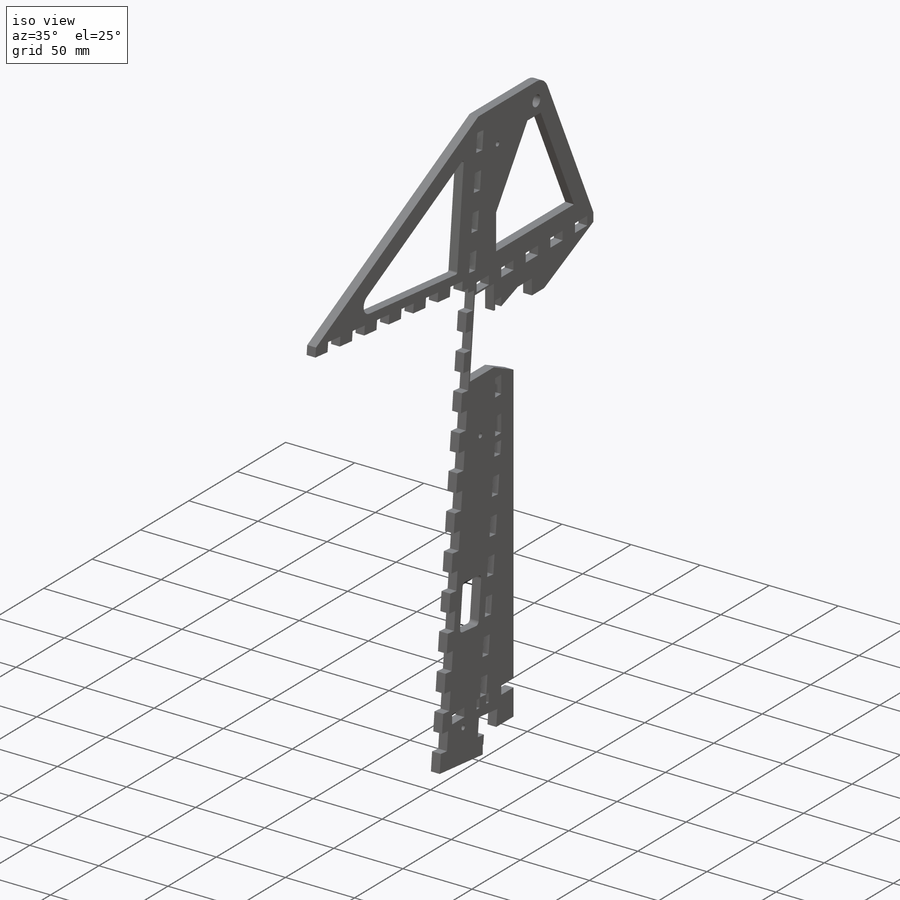
[diagram: iso view]
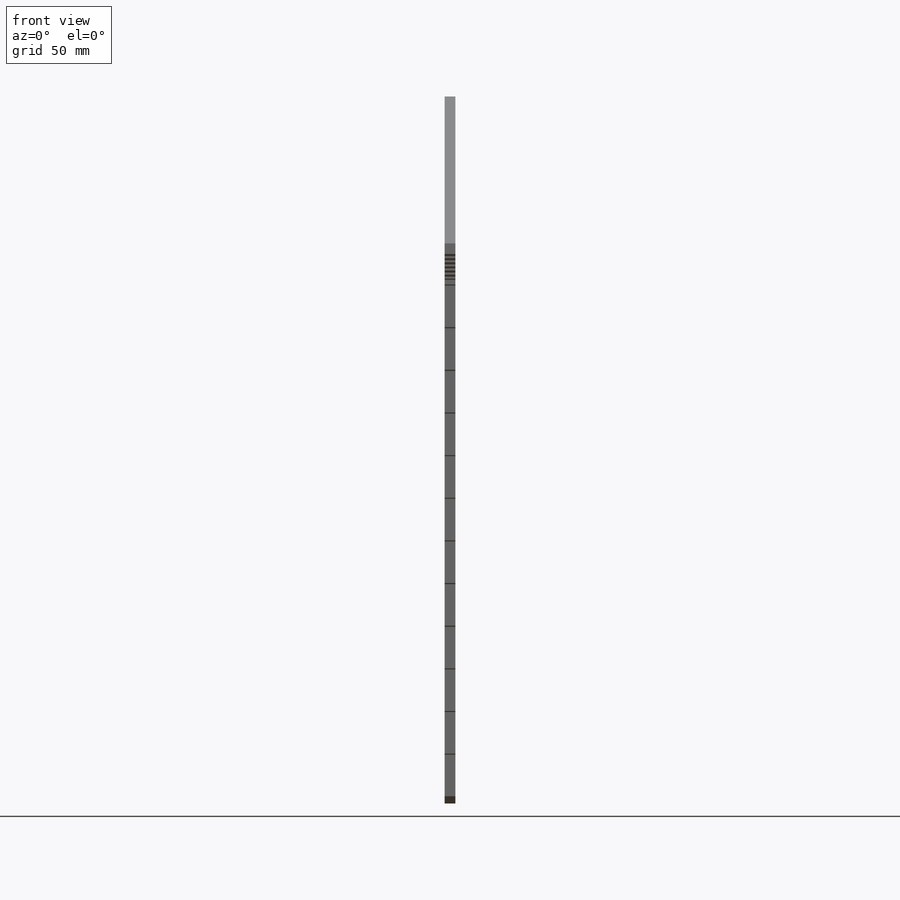
[diagram: front view]
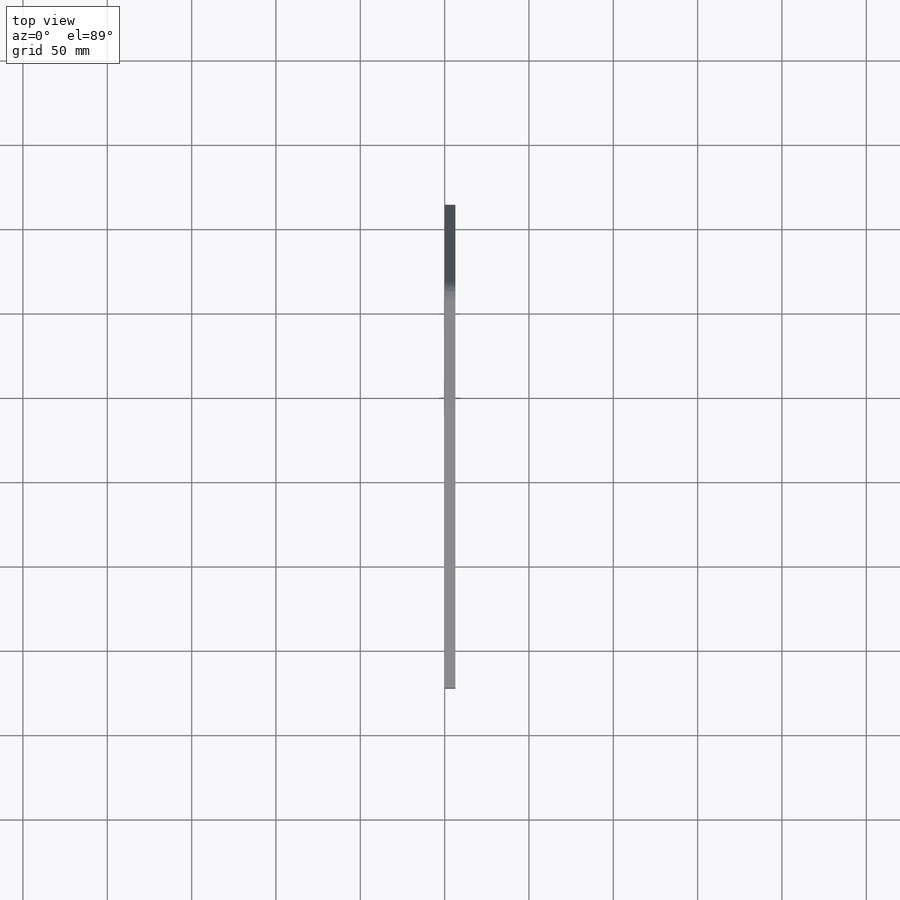
[diagram: top view]
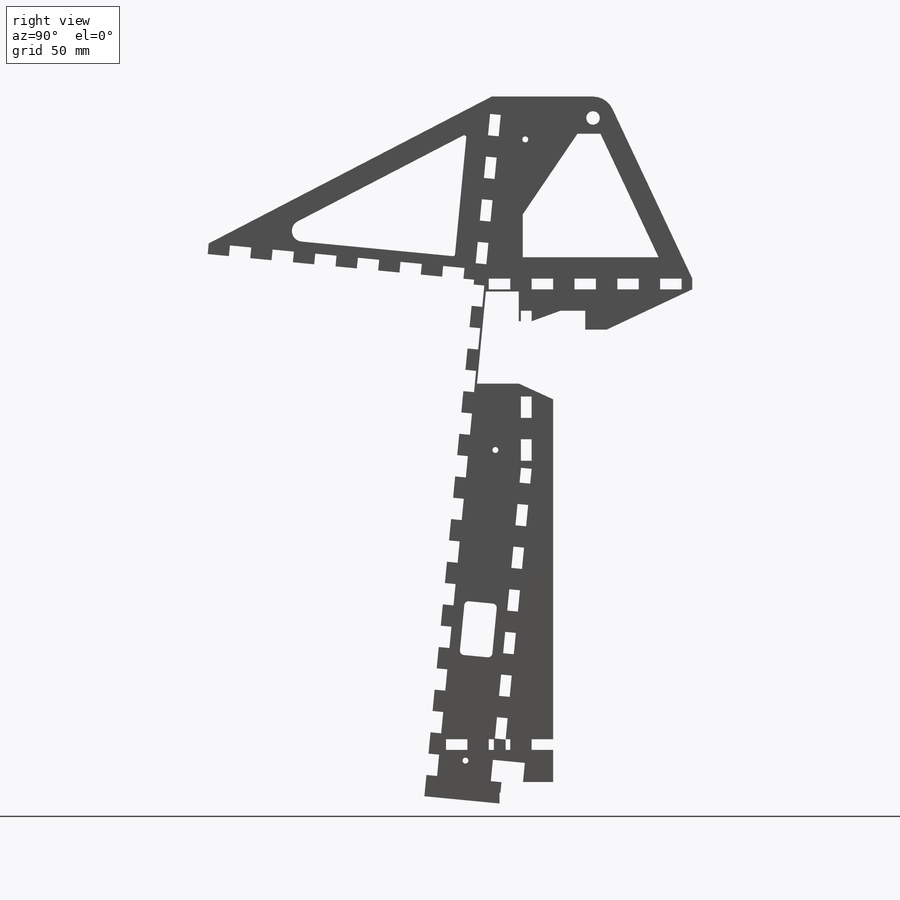
[diagram: right view]
SOLIDWORKS PART (.sldprt)
format: sldprt  version: not decoded by parser v0  size: 1,182,720 bytes
history: native  units: mm
features: sketch x23, cut_extrude x20, pattern_linear x7, fillet x4, extrude x3, material x1 (+13 scaffold rows collapsed)
feature tree (71):
  scaffold x13  (default folders/planes/origin — collapsed)
  material  "Material <not specified>"
  sketch  "Sketch1"  dims[c1.D9=76.2mm c1.D14=76.2mm c1.D1=419.1mm c1.D2=101.6mm c1.D3=19.05mm c1.D4=19.05mm c1.D5=~447.578732mm c2.D5=84.5deg c2.D6=40.0mm c2.D7=400.0mm c2.D8=95.25mm c2.D9=10.0mm c2.D10=20.0mm c2.D11=114.3mm c2.D12=200.025mm c2.D13=95.25mm c2.D14=6.35mm c2.D15=127.0mm c2.D16=95.25mm c2.D17=203.2mm c3.D12=95.25mm c3.D10=9.525mm c3.D13=9.525mm c3.D14=76.2mm c3.D9=76.2mm c4.D14=~29.170225mm c4.D9=9.525mm c4.D16=82.55mm c4.D12=76.2mm c5.D14=25.4mm c5.D16=9.525mm c5.D18=6.35mm c5.D19=50.8mm c5.D20=44.45mm c5.D21=6.35mm c5.D22=50.8mm c6.D22=~64.798876deg c7.D22=50.8mm]
  extrude  "Boss-Extrude1"  Depth=6.35mm
  sketch  "Sketch2"  dims[c1.D1=12.7mm c1.D2=12.7mm c1.D3=12.7mm c1.D4=12.7mm c1.D5=12.7mm c1.D6=12.7mm c1.D7=12.7mm c1.D8=12.7mm c1.D9=12.7mm c1.D10=12.7mm c1.D11=12.7mm c1.D12=12.7mm c2.D10=12.7mm c2.D11=12.7mm c2.D12=12.7mm c2.D13=12.7mm]
  cut_extrude  "Cut-Extrude4"  [1 undecoded]
  fillet  "Fillet1"  Radius=12.7mm
  sketch  "Sketch3"  dims[D1=8.0mm]
  cut_extrude  "Cut-Extrude5"  [1 undecoded]
  fillet  "Fillet2"  Radius=6.35mm
  sketch  "Sketch4"  dims[D1=101.6mm D2=32.0mm D3=12.7mm D4=32.0mm]
  cut_extrude  "Cut-Extrude6"  [1 undecoded]
  sketch  "Sketch5"  dims[D1=12.7mm D2=12.7mm D3=6.35mm]
  cut_extrude  "Cut-Extrude11"  [1 undecoded]
  pattern_linear  "LPattern1"  Count1=17 Count2=1 Spacing1=25.4mm Spacing2=16mm
  sketch  "Sketch7"  dims[D1=12.7mm D2=12.7mm D3=6.35mm]
  cut_extrude  "Cut-Extrude13"  [1 undecoded]
  pattern_linear  "LPattern2"  Count1=17 Count2=1 Spacing1=25.4mm Spacing2=2.54mm
  sketch  "Sketch8"  dims[D1=6.35mm D2=12.7mm]
  cut_extrude  "Cut-Extrude14"  [1 undecoded]
  pattern_linear  "LPattern3"  Count1=5 Count2=1 Spacing1=25.4mm Spacing2=2.54mm
  sketch  "Sketch9"  dims[D1=12.7mm D2=6.35mm]
  cut_extrude  "Cut-Extrude15"  [1 undecoded]
  pattern_linear  "LPattern4"  Count1=3 Count2=1 Spacing1=25.4mm Spacing2=2.54mm
  sketch  "Sketch11"  dims[D1=32.0mm]
  cut_extrude  "Cut-Extrude16"  [1 undecoded]
  pattern_linear  "LPattern5"  Count1=8 Count2=1 Spacing1=25.4mm Spacing2=2.54mm
  sketch  "Sketch12"
  extrude  "Boss-Extrude2"  [1 undecoded]
  sketch  "Sketch13"  dims[D1=6.35mm D2=12.7mm D3=31.75mm]
  cut_extrude  "Cut-Extrude17"  [1 undecoded]
  pattern_linear  "LPattern6"  Count1=3 Count2=1 Spacing1=25.4mm Spacing2=2.54mm
  sketch  "Sketch15"  dims[D1=12.7mm D2=12.7mm]
  cut_extrude  "Cut-Extrude20"  [1 undecoded]
  sketch  "Sketch16"  dims[D1=12.7mm D2=~17.864597mm]
  cut_extrude  "Cut-Extrude21"  [1 undecoded]
  sketch  "Sketch17"
  cut_extrude  "Cut-Extrude22"  [1 undecoded]
  sketch  "Sketch18"  dims[D1=12.7mm]
  cut_extrude  "Cut-Extrude23"  [1 undecoded]
  pattern_linear  "LPattern7"  Count1=4 Count2=1 Spacing1=25.4mm Spacing2=2.54mm
  sketch  "Sketch19"  dims[D4=3.5mm D1=22.225mm D2=185.0mm D3=185.0mm D5=25.4mm]
  cut_extrude  "Cut-Extrude24"  [1 undecoded]
  sketch  "Sketch20"  dims[c1.D9=22.0mm c1.D11=~30.048858mm c2.D9=25.4mm c2.D1=44.45mm c2.D2=17.78mm c2.D3=20.32mm c2.D4=54.61mm c2.D5=17.78mm c2.D6=1.27mm c2.D7=20.32mm c3.D7=20.0deg c3.D8=40.0deg c3.D10=32.893mm c3.D11=9.525mm]
  cut_extrude  "Cut-Extrude25"  [1 undecoded]
  sketch  "Sketch25"
  extrude  "Boss-Extrude3"  [1 undecoded]
  sketch  "Sketch27"
  cut_extrude  "Cut-Extrude26"  [1 undecoded]
  fillet  "Fillet3"  Radius=2.54mm
  fillet  "Fillet4"  Radius=1.27mm
  sketch  "Sketch28"  dims[D1=25.4mm D2=25.4mm]
  cut_extrude  "Cut-Extrude27"  [1 undecoded]
  sketch  "Sketch29"
  cut_extrude  "Cut-Extrude28"  [1 undecoded]
  sketch  "Sketch30"
  cut_extrude  "Cut-Extrude29"  [1 undecoded]
  sketch  "Sketch31"
  cut_extrude  "Cut-Extrude30"  [1 undecoded]
decode coverage: 28 of 57 modeling features carry decoded parameters
note: ~ marks probable driven/reference dimensions
note: 22 parameter values undecoded
summary: no parameter record found for 22 features
note: suppression state not decoded; provenance and decode notes live in map.json
